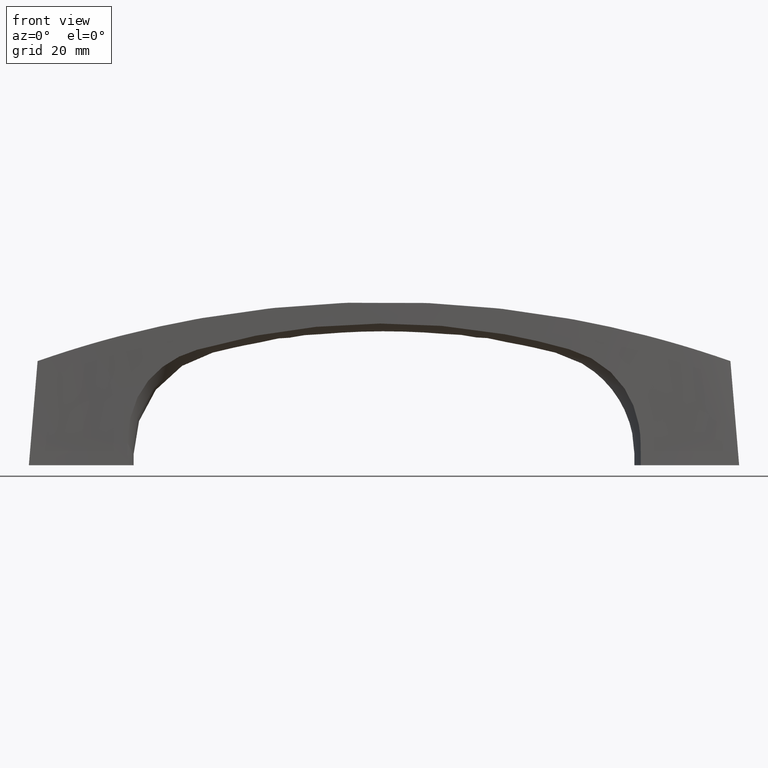
[diagram: clean part render]
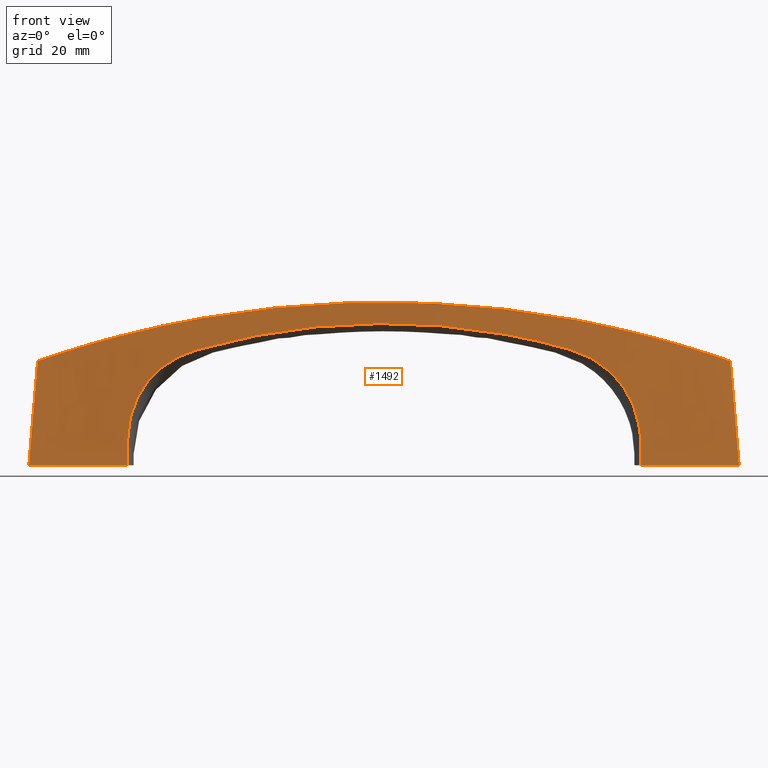
[diagram: same view with one face highlighted and labeled with its STEP entity id]
A machine part, front view. The second image highlights one B-rep face of the part: STEP entity #1492.
In plain terms, the highlighted face is a freeform B-spline surface patch.
Its self-contained STEP definition (entity closure, byte-faithful):
#465=CARTESIAN_POINT('',(-44.080123622125953,-4.976198646050800,3.863063321320455));
#466=VERTEX_POINT('',#465);
#484=CARTESIAN_POINT('',(-44.102122300624352,-5.023570607590821,4.665728E-014));
#485=VERTEX_POINT('',#484);
#486=CARTESIAN_POINT('',(-44.080123622125953,-4.976198646050800,3.863063321320455));
#487=CARTESIAN_POINT('',(-44.087409564208393,-4.991977262495060,2.575375136871680));
#488=CARTESIAN_POINT('',(-44.094742291615660,-5.007767873979342,1.287687359817675));
#489=CARTESIAN_POINT('',(-44.102122300624352,-5.023570607590821,4.665728E-014));
#490=B_SPLINE_CURVE_WITH_KNOTS('',3,(#486,#487,#488,#489),.UNSPECIFIED.,.F.,.U.,(4,4),(0.005956976978245,0.009820393349975),.UNSPECIFIED.);
#491=EDGE_CURVE('',#466,#485,#490,.T.);
#534=CARTESIAN_POINT('',(44.102548297613751,-5.023843930014130,0.0));
#535=VERTEX_POINT('',#534);
#549=CARTESIAN_POINT('',(44.082879863556499,-4.979579647296540,3.603921780029675));
#550=VERTEX_POINT('',#549);
#551=CARTESIAN_POINT('',(44.102548297613751,-5.023843930014130,0.0));
#552=CARTESIAN_POINT('',(44.095951091315143,-5.009078687034171,1.201306899443424));
#553=CARTESIAN_POINT('',(44.089395081215812,-4.994323960801748,2.402614162126762));
#554=CARTESIAN_POINT('',(44.082879863556499,-4.979579647296540,3.603921780029675));
#555=B_SPLINE_CURVE_WITH_KNOTS('',3,(#551,#552,#553,#554),.UNSPECIFIED.,.F.,.U.,(4,4),(0.0,0.003604247230196),.UNSPECIFIED.);
#556=EDGE_CURVE('',#535,#550,#555,.T.);
#677=CARTESIAN_POINT('',(31.802017009434401,-5.160834543177030,19.919319875869650));
#678=VERTEX_POINT('',#677);
#679=CARTESIAN_POINT('',(31.802017009434401,-5.160834543177030,19.919319875869650));
#680=CARTESIAN_POINT('',(32.691539851712342,-5.141563303627655,19.667296589518589));
#681=CARTESIAN_POINT('',(33.552061479474489,-5.122936460799529,19.354723559195481));
#682=CARTESIAN_POINT('',(34.798723480071423,-5.095994306989473,18.793657488653700));
#683=CARTESIAN_POINT('',(35.206902775466972,-5.087185454150149,18.591178249858700));
#684=CARTESIAN_POINT('',(36.007864644051317,-5.069965167658074,18.154071476555000));
#685=CARTESIAN_POINT('',(36.400650359213117,-5.061554005675075,17.919450486631892));
#686=CARTESIAN_POINT('',(36.977540532800788,-5.049285566978782,17.541859475034080));
#687=CARTESIAN_POINT('',(37.167785739487613,-5.045254220951280,17.411712010661631));
#688=CARTESIAN_POINT('',(37.449951509929782,-5.039301229410651,17.209804457082321));
#689=CARTESIAN_POINT('',(37.543429090555279,-5.037333512795889,17.141413454365338));
#690=CARTESIAN_POINT('',(37.728319000058178,-5.033450985088471,17.003106248660451));
#691=CARTESIAN_POINT('',(37.819853848824792,-5.031533586167400,16.933103315160551));
#692=CARTESIAN_POINT('',(38.272982866651319,-5.022066877914060,16.578846924034870));
#693=CARTESIAN_POINT('',(38.620954954208557,-5.014878282334703,16.281880980233989));
#694=CARTESIAN_POINT('',(39.621128440782812,-4.994506073388788,15.350160590472640));
#695=CARTESIAN_POINT('',(40.229639616246239,-4.982422400602411,14.674634315657340));
#696=CARTESIAN_POINT('',(41.052263548453837,-4.967291659650552,13.577210124065820));
#697=CARTESIAN_POINT('',(41.311434995790812,-4.962773213474763,13.197367252574949));
#698=CARTESIAN_POINT('',(41.798938612787673,-4.954981217493461,12.408893653299209));
#699=CARTESIAN_POINT('',(42.023339237843039,-4.951770835192053,12.006642455043311));
#700=CARTESIAN_POINT('',(42.641939488034012,-4.944249474085741,10.777314663303921));
#701=CARTESIAN_POINT('',(42.981864554477333,-4.942049734815915,9.927780685954243));
#702=CARTESIAN_POINT('',(43.323172687693187,-4.942869811698580,8.831278665279188));
#703=CARTESIAN_POINT('',(43.387228154627593,-4.943212156062575,8.610238177892938));
#704=CARTESIAN_POINT('',(43.506990655257830,-4.944254888572649,8.164703454420714));
#705=CARTESIAN_POINT('',(43.562779484670848,-4.944957046415500,7.939820224847321));
#706=CARTESIAN_POINT('',(43.716808943542482,-4.947586659932695,7.263875905623732));
#707=CARTESIAN_POINT('',(43.801924278721458,-4.950034885818505,6.811122657174763));
#708=CARTESIAN_POINT('',(44.007083324495383,-4.959369581489566,5.446839329922986));
#709=CARTESIAN_POINT('',(44.077307010174707,-4.968241734188141,4.529287907441254));
#710=CARTESIAN_POINT('',(44.082879863556499,-4.979579647296540,3.603921780029675));
#711=B_SPLINE_CURVE_WITH_KNOTS('',3,(#679,#680,#681,#682,#683,#684,#685,#686,#687,#688,#689,#690,#691,#692,#693,#694,#695,#696,#697,#698,#699,#700,#701,#702,#703,#704,#705,#706,#707,#708,#709,#710),.UNSPECIFIED.,.F.,.U.,(4,2,2,2,2,2,2,2,2,2,2,2,2,2,2,4),(0.000010611798683,0.124999999999999,0.187499999999999,0.250000000000000,0.281250000000000,0.296874999999999,0.312499999999999,0.374999999999999,0.500000000000000,0.562500000000000,0.625000000000000,0.750000000000000,0.781250000000000,0.812500000000000,0.875000000000000,0.999994305615757),.UNSPECIFIED.);
#712=EDGE_CURVE('',#678,#550,#711,.T.);
#861=CARTESIAN_POINT('',(-32.104064012662562,-5.154287948843100,19.832745392253351));
#862=VERTEX_POINT('',#861);
#877=CARTESIAN_POINT('',(-44.080123622125953,-4.976198646050800,3.863063321320455));
#878=CARTESIAN_POINT('',(-44.074846531819063,-4.965129320209494,4.766938464016099));
#879=CARTESIAN_POINT('',(-44.009413938881252,-4.956398435922593,5.660763221280451));
#880=CARTESIAN_POINT('',(-43.818278474065373,-4.947069328119982,6.986074986679090));
#881=CARTESIAN_POINT('',(-43.738959792354997,-4.944589086302448,7.425311074515220));
#882=CARTESIAN_POINT('',(-43.547505655461627,-4.940952283483406,8.298300734893024));
#883=CARTESIAN_POINT('',(-43.435373743952873,-4.939795777385291,8.732054900673731));
#884=CARTESIAN_POINT('',(-43.240705976309478,-4.939111221742381,9.378263863237931));
#885=CARTESIAN_POINT('',(-43.171398050224802,-4.939058165529024,9.592928629102101));
#886=CARTESIAN_POINT('',(-43.060506757744271,-4.939249203797560,9.913768066510594));
#887=CARTESIAN_POINT('',(-43.022423633019812,-4.939358029550435,10.020408908724070));
#888=CARTESIAN_POINT('',(-42.944261647837223,-4.939665091330699,10.232346802194471));
#889=CARTESIAN_POINT('',(-42.904146612589606,-4.939863377257449,10.337749550648860));
#890=CARTESIAN_POINT('',(-42.698379665815672,-4.941077191557993,10.861920515189890));
#891=CARTESIAN_POINT('',(-42.517168831399843,-4.942760428381242,11.272169362327970));
#892=CARTESIAN_POINT('',(-41.922507205042358,-4.949882083757441,12.474975532044700));
#893=CARTESIAN_POINT('',(-41.458191180679222,-4.957412103816399,13.239682020885621));
#894=CARTESIAN_POINT('',(-40.853271038589448,-4.968644984555969,14.054774031111050));
#895=CARTESIAN_POINT('',(-40.784907450905962,-4.969931018155694,14.144710077086611));
#896=CARTESIAN_POINT('',(-40.645852151758902,-4.972576834387818,14.323307590039819));
#897=CARTESIAN_POINT('',(-40.575110790273030,-4.973937615676182,14.412024425748870));
#898=CARTESIAN_POINT('',(-40.360493369073851,-4.978104604997530,14.674872561604840));
#899=CARTESIAN_POINT('',(-40.213888784528557,-4.981001856092457,14.846145913419830));
#900=CARTESIAN_POINT('',(-39.763723247557323,-4.990000241315147,15.348345745505579));
#901=CARTESIAN_POINT('',(-39.449814871684183,-4.996400123508437,15.667657077111970));
#902=CARTESIAN_POINT('',(-38.468384056446212,-5.016702651595840,16.581021813899969));
#903=CARTESIAN_POINT('',(-37.761328977120982,-5.031710143273696,17.130700047740859));
#904=CARTESIAN_POINT('',(-36.909581144306571,-5.050025497104862,17.685882722635789));
#905=CARTESIAN_POINT('',(-36.814053491857813,-5.052082675586596,17.746751286951021));
#906=CARTESIAN_POINT('',(-36.622044964291078,-5.056222850953624,17.866350933094989));
#907=CARTESIAN_POINT('',(-36.332614427650533,-5.062471559032242,18.042547405208008));
#908=CARTESIAN_POINT('',(-36.039020603310583,-5.068830154291908,18.209338246047121));
#909=CARTESIAN_POINT('',(-35.446486504736647,-5.081680359388210,18.530841712758630));
#910=CARTESIAN_POINT('',(-35.044345838552019,-5.090423872579568,18.729097184900208));
#911=CARTESIAN_POINT('',(-33.817927664355729,-5.117091754547421,19.278325488932111));
#912=CARTESIAN_POINT('',(-32.973677311581909,-5.135433933836556,19.584181355654550));
#913=CARTESIAN_POINT('',(-32.104064012662562,-5.154287948843100,19.832745392253351));
#914=B_SPLINE_CURVE_WITH_KNOTS('',3,(#877,#878,#879,#880,#881,#882,#883,#884,#885,#886,#887,#888,#889,#890,#891,#892,#893,#894,#895,#896,#897,#898,#899,#900,#901,#902,#903,#904,#905,#906,#907,#908,#909,#910,#911,#912,#913),.UNSPECIFIED.,.F.,.U.,(4,2,2,2,2,2,2,2,2,2,2,2,2,2,2,1,2,2,4),(0.000030185278820,0.124999999999998,0.187499999999997,0.249999999999996,0.281249999999996,0.296874999999995,0.312499999999995,0.374999999999995,0.499999999999996,0.515624999999996,0.531249999999996,0.562499999999996,0.624999999999997,0.749999999999998,0.765624999999998,0.781249999999998,0.812499999999999,0.874999999999999,0.999979244571882),.UNSPECIFIED.);
#915=EDGE_CURVE('',#466,#862,#914,.T.);
#979=CARTESIAN_POINT('',(-32.104064012662562,-5.154287948843100,19.832745392253351));
#980=CARTESIAN_POINT('',(-31.455906681658330,-5.168341272719869,20.017790178064690));
#981=CARTESIAN_POINT('',(-30.806174278058261,-5.182374401030033,20.197459848592509));
#982=CARTESIAN_POINT('',(-29.503481521281561,-5.210845616278813,20.546283311777731));
#983=CARTESIAN_POINT('',(-28.850525258233532,-5.225312663392298,20.715448819957171));
#984=CARTESIAN_POINT('',(-27.541442339896118,-5.254122721196410,21.042966978998930));
#985=CARTESIAN_POINT('',(-26.885137477090669,-5.268465991916456,21.201357485574949));
#986=CARTESIAN_POINT('',(-25.570573362361710,-5.296502044259849,21.506766102497089));
#987=CARTESIAN_POINT('',(-24.912233560607081,-5.310196595236666,21.653807584307639));
#988=CARTESIAN_POINT('',(-22.933984569017589,-5.349756705571251,22.077690182591311));
#989=CARTESIAN_POINT('',(-21.610841215804211,-5.374046219307145,22.337269556679821));
#990=CARTESIAN_POINT('',(-18.955749398366500,-5.416893286289576,22.809562641774630));
#991=CARTESIAN_POINT('',(-17.623808960553440,-5.435528113719601,23.022312575885611));
#992=CARTESIAN_POINT('',(-15.619232306274990,-5.458926363941833,23.305976706853251));
#993=CARTESIAN_POINT('',(-14.949753185706140,-5.465963222870101,23.394636664710379));
#994=CARTESIAN_POINT('',(-13.610133762978229,-5.478384429766816,23.559844649126390));
#995=CARTESIAN_POINT('',(-12.939849142172021,-5.483770607724916,23.636416130217441));
#996=CARTESIAN_POINT('',(-10.927563763181251,-5.497268614926988,23.847954272517288));
#997=CARTESIAN_POINT('',(-9.584118443744860,-5.502414041464815,23.964590974590660));
#998=CARTESIAN_POINT('',(-6.893435558068437,-5.506179094508274,24.149691131536962));
#999=CARTESIAN_POINT('',(-5.546215136344048,-5.505190287359071,24.218356982086721));
#1000=CARTESIAN_POINT('',(-3.522712465238101,-5.502927237273293,24.287250287173880));
#1001=CARTESIAN_POINT('',(-2.847649400596666,-5.502044025323405,24.304529316864389));
#1002=CARTESIAN_POINT('',(-1.498098462595619,-5.500620042422374,24.327982365322161));
#1003=CARTESIAN_POINT('',(-0.823448496612311,-5.500079198447363,24.334163948647699));
#1004=CARTESIAN_POINT('',(2.549192115505067,-5.499723905409029,24.338160337276811));
#1005=CARTESIAN_POINT('',(5.245364868618548,-5.507608681366405,24.255673881047208));
#1006=CARTESIAN_POINT('',(8.612875682077734,-5.503931989643172,24.032994450631421));
#1007=CARTESIAN_POINT('',(9.286323247740269,-5.502520490718755,23.982463378262270));
#1008=CARTESIAN_POINT('',(10.631250071406139,-5.497773614711227,23.869261939382501));
#1009=CARTESIAN_POINT('',(11.302929918375529,-5.494432226868222,23.806577164342269));
#1010=CARTESIAN_POINT('',(13.315640330976050,-5.481722045079955,23.600423717370521));
#1011=CARTESIAN_POINT('',(14.654343235281081,-5.469679209812371,23.438866548064109));
#1012=CARTESIAN_POINT('',(17.325628542439450,-5.439425666335707,23.068124090055750));
#1013=CARTESIAN_POINT('',(18.658211582360419,-5.421223580247538,22.858943157455059));
#1014=CARTESIAN_POINT('',(20.652522425907652,-5.389682890040875,22.509630886838959));
#1015=CARTESIAN_POINT('',(21.316544801862289,-5.378451744150816,22.387255049357321));
#1016=CARTESIAN_POINT('',(22.641041180256771,-5.354721779466034,22.131107577540739));
#1017=CARTESIAN_POINT('',(23.301772128543419,-5.342218408457084,21.997292348356030));
#1018=CARTESIAN_POINT('',(25.279484047502098,-5.303146952249571,21.578863519218391));
#1019=CARTESIAN_POINT('',(26.591977726827110,-5.274956802050054,21.277247448973888));
#1020=CARTESIAN_POINT('',(28.552144906749000,-5.231919184926307,20.792146311808921));
#1021=CARTESIAN_POINT('',(29.204106696140219,-5.217463039330730,20.625004704018529));
#1022=CARTESIAN_POINT('',(30.505184054665779,-5.188916759128201,20.280131101550431));
#1023=CARTESIAN_POINT('',(31.154305497132700,-5.174867252474643,20.102418203935159));
#1024=CARTESIAN_POINT('',(31.802017009434401,-5.160834543177030,19.919319875869650));
#1025=B_SPLINE_CURVE_WITH_KNOTS('',3,(#979,#980,#981,#982,#983,#984,#985,#986,#987,#988,#989,#990,#991,#992,#993,#994,#995,#996,#997,#998,#999,#1000,#1001,#1002,#1003,#1004,#1005,#1006,#1007,#1008,#1009,#1010,#1011,#1012,#1013,#1014,#1015,#1016,#1017,#1018,#1019,#1020,#1021,#1022,#1023,#1024),.UNSPECIFIED.,.F.,.U.,(4,2,2,2,2,2,2,2,2,2,2,2,2,2,2,2,2,2,2,2,2,2,4),(0.000006961809216,0.031250000000000,0.062500000000000,0.093750000000000,0.125000000000000,0.187500000000000,0.250000000000000,0.281250000000000,0.312500000000001,0.375000000000000,0.437500000000000,0.468750000000000,0.500000000000000,0.625000000000000,0.656250000000000,0.687500000000000,0.750000000000000,0.812500000000000,0.843750000000000,0.875000000000000,0.937500000000000,0.968750000000000,0.999996374207115),.UNSPECIFIED.);
#1026=EDGE_CURVE('',#862,#678,#1025,.T.);
#1191=CARTESIAN_POINT('',(-59.500002039602812,-4.000000679867860,17.881975685202750));
#1192=VERTEX_POINT('',#1191);
#1198=CARTESIAN_POINT('',(59.500311120296097,-4.000003706765675,17.881867431229701));
#1199=VERTEX_POINT('',#1198);
#1200=CARTESIAN_POINT('',(-59.500002039602812,-4.000000679867875,17.881975685202701));
#1201=CARTESIAN_POINT('',(-59.202951650959541,-4.031857664571169,17.986015800552771));
#1202=CARTESIAN_POINT('',(-58.905302530505217,-4.058073864810369,18.089390576383050));
#1203=CARTESIAN_POINT('',(-58.309162233530337,-4.105247695726769,18.294677593602959));
#1204=CARTESIAN_POINT('',(-58.010662060485842,-4.126053011327645,18.396593143793520));
#1205=CARTESIAN_POINT('',(-57.114083562234953,-4.183720641959837,18.700076804666409));
#1206=CARTESIAN_POINT('',(-56.514934231589002,-4.215952988429058,18.899379305636138));
#1207=CARTESIAN_POINT('',(-55.314225772117922,-4.275640941520567,19.291775574312702));
#1208=CARTESIAN_POINT('',(-54.712691877523007,-4.302910301678708,19.484861044646330));
#1209=CARTESIAN_POINT('',(-53.507747728437337,-4.355426037135759,19.864648653661259));
#1210=CARTESIAN_POINT('',(-52.904285029440622,-4.380630458946734,20.051368137447270));
#1211=CARTESIAN_POINT('',(-51.695440747712261,-4.430543490713485,20.418439709912501));
#1212=CARTESIAN_POINT('',(-51.090058621145637,-4.455237662396748,20.598792017226820));
#1213=CARTESIAN_POINT('',(-49.877408809168067,-4.504990601686062,20.953119282836159));
#1214=CARTESIAN_POINT('',(-49.270142888573908,-4.530094317551069,21.127093801323070));
#1215=CARTESIAN_POINT('',(-47.445513367627967,-4.605882230360203,21.639449780377628));
#1216=CARTESIAN_POINT('',(-46.225256065433307,-4.656913520713346,21.968273058684279));
#1217=CARTESIAN_POINT('',(-43.779486501350853,-4.756518490573156,22.599803540090608));
#1218=CARTESIAN_POINT('',(-42.553675985360073,-4.805117782569530,22.902597112055869));
#1219=CARTESIAN_POINT('',(-40.096129984122364,-4.897445320278773,23.482291529547329));
#1220=CARTESIAN_POINT('',(-38.864382833269516,-4.940818519290950,23.759194820664408));
#1221=CARTESIAN_POINT('',(-36.394939679480288,-5.022019178644673,24.287105612052141));
#1222=CARTESIAN_POINT('',(-35.157249000777753,-5.060009048553346,24.538111939744010));
#1223=CARTESIAN_POINT('',(-33.296261366290622,-5.113348410580866,24.895165192708099));
#1224=CARTESIAN_POINT('',(-32.675190154090252,-5.130520452229392,25.010939973182019));
#1225=CARTESIAN_POINT('',(-31.431565135583341,-5.163747514678740,25.235994693422139));
#1226=CARTESIAN_POINT('',(-30.808907205786362,-5.179806474950897,25.345292059064210));
#1227=CARTESIAN_POINT('',(-28.939573819807670,-5.226498311217277,25.663280416117079));
#1228=CARTESIAN_POINT('',(-27.691667015836959,-5.255671319496686,25.862052709492961));
#1229=CARTESIAN_POINT('',(-25.192477543301731,-5.309331304006227,26.233211238274841));
#1230=CARTESIAN_POINT('',(-23.941194584858771,-5.333801713125330,26.405597458272069));
#1231=CARTESIAN_POINT('',(-21.435255028756369,-5.378069996966849,26.723999785051589));
#1232=CARTESIAN_POINT('',(-20.180599590286810,-5.397935858762549,26.870015711621772));
#1233=CARTESIAN_POINT('',(-17.667925103755898,-5.433716058751035,27.135657409519471));
#1234=CARTESIAN_POINT('',(-16.409904095804560,-5.449515353981245,27.255283498682729));
#1235=CARTESIAN_POINT('',(-14.520327647354449,-5.469250844248007,27.414891158471999));
#1236=CARTESIAN_POINT('',(-13.889936857056870,-5.475167144866334,27.464795826181518));
#1237=CARTESIAN_POINT('',(-12.628911603587680,-5.485508463925171,27.557940378726929));
#1238=CARTESIAN_POINT('',(-11.998299122960249,-5.489933458877390,27.601180090520259));
#1239=CARTESIAN_POINT('',(-10.106162086410190,-5.500724424577559,27.720913719922951));
#1240=CARTESIAN_POINT('',(-8.844337337917056,-5.504210303717488,27.787423264036370));
#1241=CARTESIAN_POINT('',(-5.057670378206599,-5.507164474253818,27.947070207329819));
#1242=CARTESIAN_POINT('',(-2.531637366658468,-5.500008467748430,28.000343221206311));
#1243=CARTESIAN_POINT('',(0.627859080200238,-5.499997892389869,28.000414138020339));
#1244=CARTESIAN_POINT('',(1.259856165583791,-5.500444589300621,27.997100945259309));
#1245=CARTESIAN_POINT('',(2.524046957182259,-5.501725954404015,27.983812501521950));
#1246=CARTESIAN_POINT('',(3.156345625408171,-5.502560713273750,27.973834708058259));
#1247=CARTESIAN_POINT('',(5.052623909699928,-5.504879729737876,27.933915124109351));
#1248=CARTESIAN_POINT('',(6.315941400465650,-5.506176436834136,27.893994844261510));
#1249=CARTESIAN_POINT('',(8.840818968977763,-5.504217255674801,27.787597824881811));
#1250=CARTESIAN_POINT('',(10.102377676308009,-5.500739351882912,27.721121170269420));
#1251=CARTESIAN_POINT('',(12.623721571482379,-5.486378547018386,27.561635533625662));
#1252=CARTESIAN_POINT('',(13.883509234993920,-5.475895917148668,27.468626474482210));
#1253=CARTESIAN_POINT('',(16.401323186242522,-5.449621327168013,27.256063063443040));
#1254=CARTESIAN_POINT('',(17.659349504675600,-5.433834321899831,27.136508711367291));
#1255=CARTESIAN_POINT('',(19.545070670595059,-5.406994613649247,26.937231674689642));
#1256=CARTESIAN_POINT('',(20.173531997690279,-5.397530026556813,26.867468596402059));
#1257=CARTESIAN_POINT('',(21.429373716213519,-5.377589192536349,26.721360056907400));
#1258=CARTESIAN_POINT('',(22.056752635751199,-5.367093923105186,26.645016285990959));
#1259=CARTESIAN_POINT('',(23.937262306863872,-5.333886174402333,26.406130099868381));
#1260=CARTESIAN_POINT('',(25.188765410198538,-5.309419666194323,26.233734011178338));
#1261=CARTESIAN_POINT('',(27.687437686436699,-5.255783752946812,25.862709245072949));
#1262=CARTESIAN_POINT('',(28.934607219478259,-5.226629613030585,25.664080576870369));
#1263=CARTESIAN_POINT('',(31.424632472662790,-5.164432486846369,25.240596809368760));
#1264=CARTESIAN_POINT('',(32.667487235838060,-5.131348624690989,25.015741731270850));
#1265=CARTESIAN_POINT('',(35.148854988291852,-5.060250347117896,24.539783491486890));
#1266=CARTESIAN_POINT('',(36.387613252746043,-5.022248510986443,24.288627340952821));
#1267=CARTESIAN_POINT('',(38.859619363935167,-4.940992796085656,23.760257419539808));
#1268=CARTESIAN_POINT('',(40.092482378661337,-4.897587495820567,23.483131951876459));
#1269=CARTESIAN_POINT('',(42.551934653226169,-4.805216622420561,22.903027807145779));
#1270=CARTESIAN_POINT('',(43.778536643316670,-4.756612297040482,22.600046442590951));
#1271=CARTESIAN_POINT('',(46.225574736905472,-4.656996988013593,21.968193136404270));
#1272=CARTESIAN_POINT('',(47.445586477573237,-4.605978859143142,21.639429266257611));
#1273=CARTESIAN_POINT('',(49.270109335287067,-4.530138692538140,21.127103215509599));
#1274=CARTESIAN_POINT('',(49.877386885924487,-4.505006745158298,20.953125830121380));
#1275=CARTESIAN_POINT('',(51.090154825986801,-4.455213870665346,20.598763765401969));
#1276=CARTESIAN_POINT('',(51.695643525441007,-4.430509157301532,20.418379504986142));
#1277=CARTESIAN_POINT('',(52.904796906425659,-4.380626009160136,20.051211333109229));
#1278=CARTESIAN_POINT('',(53.508361420421743,-4.355466745119006,19.864457551898099));
#1279=CARTESIAN_POINT('',(54.713285878547879,-4.303113022969516,19.484671490049241));
#1280=CARTESIAN_POINT('',(55.314664135498603,-4.275963849446617,19.291633471616070));
#1281=CARTESIAN_POINT('',(56.515091569237917,-4.216530239772811,18.899326730308498));
#1282=CARTESIAN_POINT('',(57.114150472032492,-4.184438775761271,18.700054362752390));
#1283=CARTESIAN_POINT('',(58.010707861651987,-4.126822265180143,18.396577537280269));
#1284=CARTESIAN_POINT('',(58.309220316293192,-4.106006835612657,18.294657782562290));
#1285=CARTESIAN_POINT('',(58.905438784933573,-4.058650998643365,18.089343465359459));
#1286=CARTESIAN_POINT('',(59.203153259233609,-4.032278088632113,17.985945795117171));
#1287=CARTESIAN_POINT('',(59.500311120296097,-4.000003706765680,17.881867431229601));
#1288=B_SPLINE_CURVE_WITH_KNOTS('',3,(#1200,#1201,#1202,#1203,#1204,#1205,#1206,#1207,#1208,#1209,#1210,#1211,#1212,#1213,#1214,#1215,#1216,#1217,#1218,#1219,#1220,#1221,#1222,#1223,#1224,#1225,#1226,#1227,#1228,#1229,#1230,#1231,#1232,#1233,#1234,#1235,#1236,#1237,#1238,#1239,#1240,#1241,#1242,#1243,#1244,#1245,#1246,#1247,#1248,#1249,#1250,#1251,#1252,#1253,#1254,#1255,#1256,#1257,#1258,#1259,#1260,#1261,#1262,#1263,#1264,#1265,#1266,#1267,#1268,#1269,#1270,#1271,#1272,#1273,#1274,#1275,#1276,#1277,#1278,#1279,#1280,#1281,#1282,#1283,#1284,#1285,#1286,#1287),.UNSPECIFIED.,.F.,.U.,(4,2,2,2,2,2,2,2,2,2,2,2,2,2,2,2,2,2,2,2,2,2,2,2,2,2,2,2,2,2,2,2,2,2,2,2,2,2,2,2,2,2,2,4),(0.0,0.007812500000000,0.015625000000000,0.031250000000000,0.046875000000000,0.062500000000000,0.078125000000000,0.093749999999999,0.124999999999999,0.156249999999999,0.187499999999999,0.218749999999999,0.234374999999999,0.249999999999998,0.281249999999998,0.312499999999998,0.343749999999998,0.374999999999998,0.390624999999998,0.406249999999998,0.437499999999998,0.499999999999998,0.515624999999998,0.531249999999998,0.562499999999998,0.593749999999998,0.624999999999998,0.656249999999998,0.671874999999998,0.687499999999998,0.718749999999998,0.749999999999998,0.781249999999998,0.812499999999999,0.843749999999999,0.874999999999999,0.906249999999999,0.921874999999999,0.937499999999999,0.953124999999999,0.968750000000000,0.984375000000000,0.992187500000000,1.0),.UNSPECIFIED.);
#1289=EDGE_CURVE('',#1192,#1199,#1288,.T.);
#1312=CARTESIAN_POINT('',(-61.0,-4.500000000000000,-6.661338E-013));
#1313=VERTEX_POINT('',#1312);
#1319=CARTESIAN_POINT('',(-59.500002039602812,-4.000000679867860,17.881975685202750));
#1320=CARTESIAN_POINT('',(-61.0,-4.500000000000000,-6.661338E-013));
#1321=QUASI_UNIFORM_CURVE('',1,(#1319,#1320),.UNSPECIFIED.,.F.,.U.);
#1322=EDGE_CURVE('',#1192,#1313,#1321,.T.);
#1333=CARTESIAN_POINT('',(61.000299999999001,-4.500000000000000,-1.554312E-012));
#1334=VERTEX_POINT('',#1333);
#1335=CARTESIAN_POINT('',(59.500311120296097,-4.000003706765675,17.881867431229701));
#1336=CARTESIAN_POINT('',(61.000299999999001,-4.500000000000000,-1.554312E-012));
#1337=QUASI_UNIFORM_CURVE('',1,(#1335,#1336),.UNSPECIFIED.,.F.,.U.);
#1338=EDGE_CURVE('',#1199,#1334,#1337,.T.);
#1361=CARTESIAN_POINT('',(-44.102122300624352,-5.023570607590821,4.665728E-014));
#1362=CARTESIAN_POINT('',(-46.087651374635378,-4.953796615689091,7.560548E-014));
#1363=CARTESIAN_POINT('',(-51.905629093042073,-4.706474693264565,9.239516E-014));
#1364=CARTESIAN_POINT('',(-57.382825673485499,-4.582122773217910,-7.656255E-013));
#1365=CARTESIAN_POINT('',(-61.0,-4.500000000000000,-6.661338E-013));
#1366=B_SPLINE_CURVE_WITH_KNOTS('',3,(#1361,#1362,#1363,#1364,#1365),.UNSPECIFIED.,.F.,.U.,(4,1,4),(0.858626061438684,0.906635781007391,1.0),.UNSPECIFIED.);
#1367=EDGE_CURVE('',#485,#1313,#1366,.T.);
#1402=CARTESIAN_POINT('',(61.000299999999001,-4.500000000000000,-1.554312E-012));
#1403=CARTESIAN_POINT('',(57.418003454618500,-4.580440600323500,-7.639177E-013));
#1404=CARTESIAN_POINT('',(52.043963182936587,-4.701114871741360,8.870168E-014));
#1405=CARTESIAN_POINT('',(46.099960793854592,-4.953844353278074,7.114332E-014));
#1406=CARTESIAN_POINT('',(44.102548297613751,-5.023843930014130,0.0));
#1407=B_SPLINE_CURVE_WITH_KNOTS('',3,(#1402,#1403,#1404,#1405,#1406),.UNSPECIFIED.,.F.,.U.,(4,1,4),(0.0,0.096242615002708,0.144379920066499),.UNSPECIFIED.);
#1408=EDGE_CURVE('',#1334,#535,#1407,.T.);
#1419=CARTESIAN_POINT('',(59.500299999998887,-3.999999999999935,17.881999999999749));
#1420=CARTESIAN_POINT('',(60.000299999999001,-4.166666666666671,11.921333333331640));
#1421=CARTESIAN_POINT('',(60.500299999998802,-4.333333333333300,5.960666666667089));
#1422=CARTESIAN_POINT('',(61.000299999999001,-4.500000000000000,-1.332268E-012));
#1423=CARTESIAN_POINT('',(56.562576996469701,-4.068552771912570,25.470020754553399));
#1424=CARTESIAN_POINT('',(56.847719149185998,-4.239182048049566,16.980013836368101));
#1425=CARTESIAN_POINT('',(57.132861301902203,-4.409811324186500,8.490006918184761));
#1426=CARTESIAN_POINT('',(57.418003454618500,-4.580440600323500,-7.639177E-013));
#1427=CARTESIAN_POINT('',(51.151198152511512,-4.194829149629966,39.447395384284903));
#1428=CARTESIAN_POINT('',(51.040565343513201,-4.372757677952570,26.298263589523650));
#1429=CARTESIAN_POINT('',(50.929932534514997,-4.550686206275200,13.149131794761519));
#1430=CARTESIAN_POINT('',(50.819299725516601,-4.728614734597799,2.830009E-013));
#1431=CARTESIAN_POINT('',(39.869641043684787,-4.797092135595700,34.570186050955613));
#1432=CARTESIAN_POINT('',(39.897106498989153,-4.942939757025780,23.046790700637001));
#1433=CARTESIAN_POINT('',(39.924571954293448,-5.088787378455850,11.523395350318520));
#1434=CARTESIAN_POINT('',(39.952037409597800,-5.234634999885929,-1.032089E-013));
#1435=CARTESIAN_POINT('',(30.035109298583450,-5.249233045279260,35.800235621704097));
#1436=CARTESIAN_POINT('',(30.027752604750098,-5.210139875495160,23.866823747802751));
#1437=CARTESIAN_POINT('',(30.020395910916701,-5.171046705711070,11.933411873901360));
#1438=CARTESIAN_POINT('',(30.013039217083300,-5.131953535926980,2.766455E-014));
#1439=CARTESIAN_POINT('',(19.990822778891349,-5.405975642572921,35.470201660657800));
#1440=CARTESIAN_POINT('',(19.992784101632900,-5.416500714681520,23.646801107105201));
#1441=CARTESIAN_POINT('',(19.994745424374400,-5.427025786790130,11.823400553552601));
#1442=CARTESIAN_POINT('',(19.996706747115901,-5.437550858898730,-7.449373E-015));
#1443=CARTESIAN_POINT('',(10.002499961018740,-5.526864379159529,35.560288035217702));
#1444=CARTESIAN_POINT('',(10.002011363733960,-5.523857259707190,23.706858690145150));
#1445=CARTESIAN_POINT('',(10.001522766449160,-5.520850140254860,11.853429345072559));
#1446=CARTESIAN_POINT('',(10.001034169164379,-5.517843020802530,2.132939E-015));
#1447=CARTESIAN_POINT('',(0.000077445729553,-5.486566840134100,35.529976492203602));
#1448=CARTESIAN_POINT('',(0.000070512140840,-5.488070245908130,23.686650994802399));
#1449=CARTESIAN_POINT('',(0.000063578552125,-5.489573651682171,11.843325497401199));
#1450=CARTESIAN_POINT('',(0.000056644963411,-5.491077057456200,-1.082384E-015));
#1451=CARTESIAN_POINT('',(-10.001909743940640,-5.526868260329270,35.561136290206953));
#1452=CARTESIAN_POINT('',(-10.001393412301001,-5.523861756682650,23.707424193471301));
#1453=CARTESIAN_POINT('',(-10.000877080661320,-5.520855253036030,11.853712096735640));
#1454=CARTESIAN_POINT('',(-10.000360749021660,-5.517848749389400,2.196597E-015));
#1455=CARTESIAN_POINT('',(-19.991538538676402,-5.405960117893790,35.466808640677051));
#1456=CARTESIAN_POINT('',(-19.993596931660651,-5.416482726779540,23.644539093784701));
#1457=CARTESIAN_POINT('',(-19.995655324644851,-5.427005335665291,11.822269546892340));
#1458=CARTESIAN_POINT('',(-19.997713717629100,-5.437527944551030,-7.704003E-015));
#1459=CARTESIAN_POINT('',(-30.031036476445749,-5.249291262827210,35.812959446901047));
#1460=CARTESIAN_POINT('',(-30.023319235988950,-5.210207330129030,23.875306297934049));
#1461=CARTESIAN_POINT('',(-30.015601995532151,-5.171123397430850,11.937653148967000));
#1462=CARTESIAN_POINT('',(-30.007884755075299,-5.132039464732659,2.861942E-014));
#1463=CARTESIAN_POINT('',(-39.883416573841252,-4.796874790061549,34.522683765457749));
#1464=CARTESIAN_POINT('',(-39.912227145529357,-4.942687926367441,23.015122510305101));
#1465=CARTESIAN_POINT('',(-39.941037717217448,-5.088501062673331,11.507561255152600));
#1466=CARTESIAN_POINT('',(-39.969848288905602,-5.234314198979229,-1.067737E-013));
#1467=CARTESIAN_POINT('',(-50.969285310610204,-4.202403289900885,39.581731095247058));
#1468=CARTESIAN_POINT('',(-50.854848692865403,-4.380111326637451,26.387820730165050));
#1469=CARTESIAN_POINT('',(-50.740412075120602,-4.557819363374050,13.193910365082219));
#1470=CARTESIAN_POINT('',(-50.625975457375802,-4.735527400110610,2.928571E-013));
#1471=CARTESIAN_POINT('',(-56.525543747800299,-4.070573187948695,25.448177416245549));
#1472=CARTESIAN_POINT('',(-56.811304389695387,-4.241089716371785,16.965451610829501));
#1473=CARTESIAN_POINT('',(-57.097065031590397,-4.411606244794815,8.482725805415480));
#1474=CARTESIAN_POINT('',(-57.382825673485499,-4.582122773217910,-7.656255E-013));
#1475=CARTESIAN_POINT('',(-59.499999999999012,-3.999999999999935,17.881999999999749));
#1476=CARTESIAN_POINT('',(-59.999999999999112,-4.166666666666671,11.921333333331640));
#1477=CARTESIAN_POINT('',(-60.499999999998892,-4.333333333333300,5.960666666667100));
#1478=CARTESIAN_POINT('',(-60.999999999999098,-4.500000000000000,-1.332268E-012));
#1479=B_SPLINE_SURFACE_WITH_KNOTS('',3,3,((#1419,#1423,#1427,#1431,#1435,#1439,#1443,#1447,#1451,#1455,#1459,#1463,#1467,#1471,#1475),(#1420,#1424,#1428,#1432,#1436,#1440,#1444,#1448,#1452,#1456,#1460,#1464,#1468,#1472,#1476),(#1421,#1425,#1429,#1433,#1437,#1441,#1445,#1449,#1453,#1457,#1461,#1465,#1469,#1473,#1477),(#1422,#1426,#1430,#1434,#1438,#1442,#1446,#1450,#1454,#1458,#1462,#1466,#1470,#1474,#1478)),.UNSPECIFIED.,.F.,.F.,.U.,(4,4),(4,1,1,1,1,1,1,1,1,1,1,1,4),(0.0,35.542046786092307),(0.0,25.142415340764099,46.313125607000131,67.483831549360858,88.654537217595845,109.825242588095310,130.995947938740300,152.166653289377900,173.337358659877110,194.508064328112310,215.678770270473000,236.849480536709000,261.239943865372480),.UNSPECIFIED.);
#1480=ORIENTED_EDGE('',*,*,#491,.F.);
#1481=ORIENTED_EDGE('',*,*,#915,.T.);
#1482=ORIENTED_EDGE('',*,*,#1026,.T.);
#1483=ORIENTED_EDGE('',*,*,#712,.T.);
#1484=ORIENTED_EDGE('',*,*,#556,.F.);
#1485=ORIENTED_EDGE('',*,*,#1408,.F.);
#1486=ORIENTED_EDGE('',*,*,#1338,.F.);
#1487=ORIENTED_EDGE('',*,*,#1289,.F.);
#1488=ORIENTED_EDGE('',*,*,#1322,.T.);
#1489=ORIENTED_EDGE('',*,*,#1367,.F.);
#1490=EDGE_LOOP('',(#1480,#1481,#1482,#1483,#1484,#1485,#1486,#1487,#1488,#1489));
#1491=FACE_OUTER_BOUND('',#1490,.T.);
#1492=ADVANCED_FACE('',(#1491),#1479,.F.);